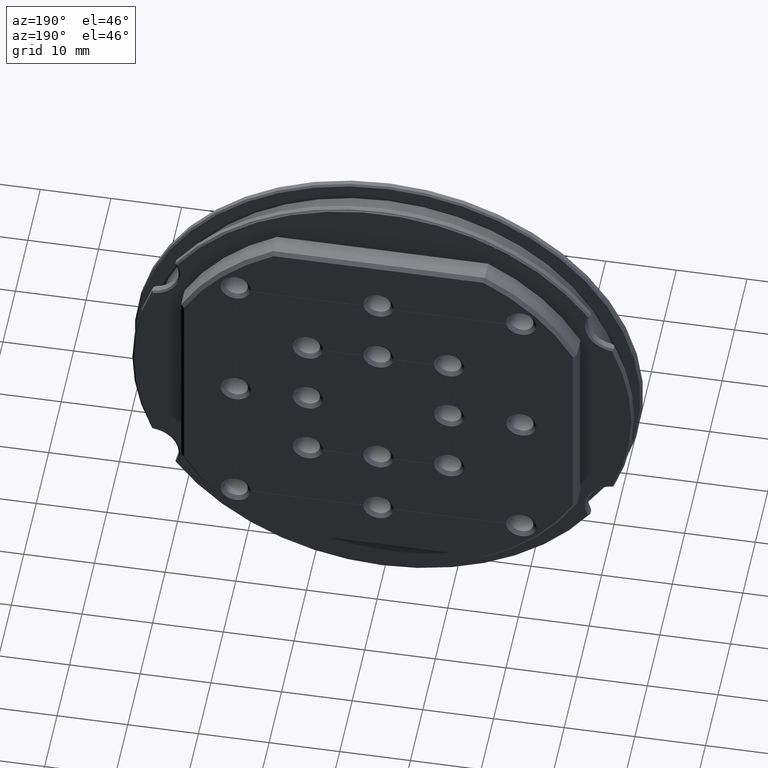
[diagram: clean part render]
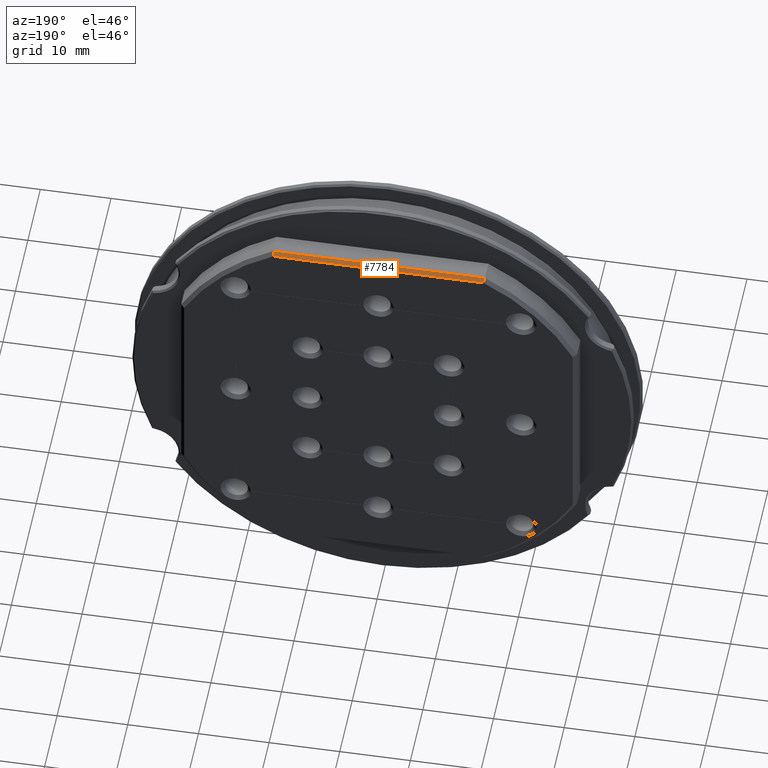
[diagram: same view with one face highlighted and labeled with its STEP entity id]
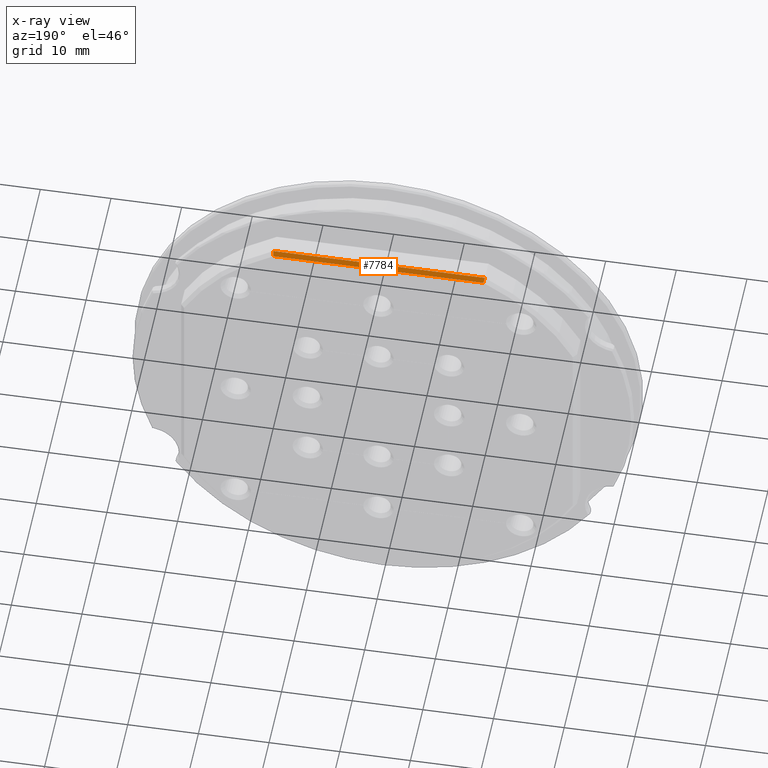
[diagram: x-ray of the same camera — body ghosted, the highlighted face saturated]
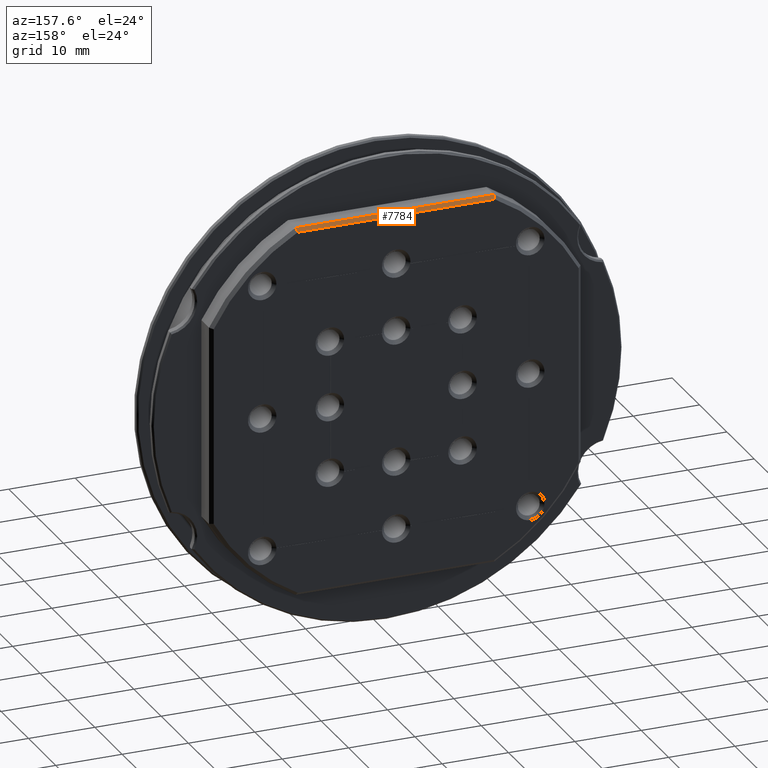
[diagram: same view with one face highlighted and labeled with its STEP entity id]
A machine part, auxiliary view. The second image highlights one B-rep face of the part: STEP entity #7784.
The next image is the same camera in x-ray: the body ghosted, the highlighted face saturated — about 0% of this face is hidden behind the body in this view.
A second angle (auxiliary view) of the same face is appended — the face is thin or edge-on in the first view.
In plain terms, the highlighted planar face has unit normal (-0, -0.7071, -0.7071).
Its self-contained STEP definition (entity closure, byte-faithful):
#582 = CARTESIAN_POINT ( 'NONE',  ( -14.84292760879738893, 8.900000000000000355, 27.49999999999999645 ) ) ;
#1154 = VERTEX_POINT ( 'NONE', #4849 ) ;
#1222 = CARTESIAN_POINT ( 'NONE',  ( -14.96871737992268869, 8.399999999999993250, 28.00000000000001066 ) ) ;
#1331 = EDGE_CURVE ( 'NONE', #1154, #4736, #5775, .T. ) ;
#1529 = DIRECTION ( 'NONE',  ( -1.000000000000000000, 0.000000000000000000, 1.239088197126290817E-16 ) ) ;
#1698 = CARTESIAN_POINT ( 'NONE',  ( 14.84292760879738893, 8.900000000000000355, 27.49999999999999289 ) ) ;
#2514 = B_SPLINE_CURVE_WITH_KNOTS ( 'NONE', 3,
 ( #6020, #4016, #4100, #2812 ),
 .UNSPECIFIED., .F., .F.,
 ( 4, 4 ),
 ( 0.000000000000000000, 0.0007182082333973724116 ),
 .UNSPECIFIED. ) ;
#2812 = CARTESIAN_POINT ( 'NONE',  ( 14.96871737992269580, 8.399999999999991473, 28.00000000000000355 ) ) ;
#3087 = EDGE_CURVE ( 'NONE', #5459, #4736, #6204, .T. ) ;
#3107 = DIRECTION ( 'NONE',  ( -8.761676666762123493E-17, -0.7071067811865487940, -0.7071067811865463515 ) ) ;
#3348 = EDGE_CURVE ( 'NONE', #1154, #3578, #4875, .T. ) ;
#3366 = CARTESIAN_POINT ( 'NONE',  ( 28.00000000000001066, 8.399999999999991473, 28.00000000000000355 ) ) ;
#3578 = VERTEX_POINT ( 'NONE', #1698 ) ;
#3590 = ORIENTED_EDGE ( 'NONE', *, *, #3917, .F. ) ;
#3756 = CARTESIAN_POINT ( 'NONE',  ( -14.92695826410000137, 8.566688107409397901, 27.83331189259060068 ) ) ;
#3917 = EDGE_CURVE ( 'NONE', #3578, #5459, #2514, .T. ) ;
#3921 = EDGE_LOOP ( 'NONE', ( #5931, #6177, #3590, #5255 ) ) ;
#4016 = CARTESIAN_POINT ( 'NONE',  ( 14.88502972106573097, 8.733355038779601287, 27.66664496122039552 ) ) ;
#4100 = CARTESIAN_POINT ( 'NONE',  ( 14.92695826410000670, 8.566688107409396125, 27.83331189259059713 ) ) ;
#4406 = CARTESIAN_POINT ( 'NONE',  ( -14.88502972106573274, 8.733355038779603063, 27.66664496122039552 ) ) ;
#4458 = CARTESIAN_POINT ( 'NONE',  ( 3.407492542097299537E-15, 8.900000000000000355, 27.49999999999999645 ) ) ;
#4518 = CARTESIAN_POINT ( 'NONE',  ( 3.407492542097299537E-15, 8.900000000000000355, 27.49999999999999645 ) ) ;
#4736 = VERTEX_POINT ( 'NONE', #6154 ) ;
#4849 = CARTESIAN_POINT ( 'NONE',  ( -14.84292760879738893, 8.900000000000000355, 27.49999999999999645 ) ) ;
#4875 = LINE ( 'NONE', #4458, #5090 ) ;
#5090 = VECTOR ( 'NONE', #7053, 1000.000000000000000 ) ;
#5255 = ORIENTED_EDGE ( 'NONE', *, *, #3348, .F. ) ;
#5459 = VERTEX_POINT ( 'NONE', #6787 ) ;
#5775 = B_SPLINE_CURVE_WITH_KNOTS ( 'NONE', 3,
 ( #582, #4406, #3756, #1222 ),
 .UNSPECIFIED., .F., .F.,
 ( 4, 4 ),
 ( 0.000000000000000000, 0.0007182082333973763147 ),
 .UNSPECIFIED. ) ;
#5931 = ORIENTED_EDGE ( 'NONE', *, *, #1331, .T. ) ;
#5955 = PLANE ( 'NONE',  #6911 ) ;
#6020 = CARTESIAN_POINT ( 'NONE',  ( 14.84292760879738893, 8.900000000000000355, 27.49999999999999289 ) ) ;
#6154 = CARTESIAN_POINT ( 'NONE',  ( -14.96871737992268869, 8.399999999999993250, 28.00000000000001066 ) ) ;
#6177 = ORIENTED_EDGE ( 'NONE', *, *, #3087, .F. ) ;
#6204 = LINE ( 'NONE', #3366, #6600 ) ;
#6600 = VECTOR ( 'NONE', #1529, 1000.000000000000000 ) ;
#6787 = CARTESIAN_POINT ( 'NONE',  ( 14.96871737992269580, 8.399999999999991473, 28.00000000000000355 ) ) ;
#6911 = AXIS2_PLACEMENT_3D ( 'NONE', #4518, #3107, #7331 ) ;
#7053 = DIRECTION ( 'NONE',  ( 1.000000000000000000, 0.000000000000000000, -1.239088197126290817E-16 ) ) ;
#7331 = DIRECTION ( 'NONE',  ( 1.000000000000000000, 0.000000000000000000, -1.239088197126290817E-16 ) ) ;
#7341 = FACE_OUTER_BOUND ( 'NONE', #3921, .T. ) ;
#7784 = ADVANCED_FACE ( 'NONE', ( #7341 ), #5955, .F. ) ;